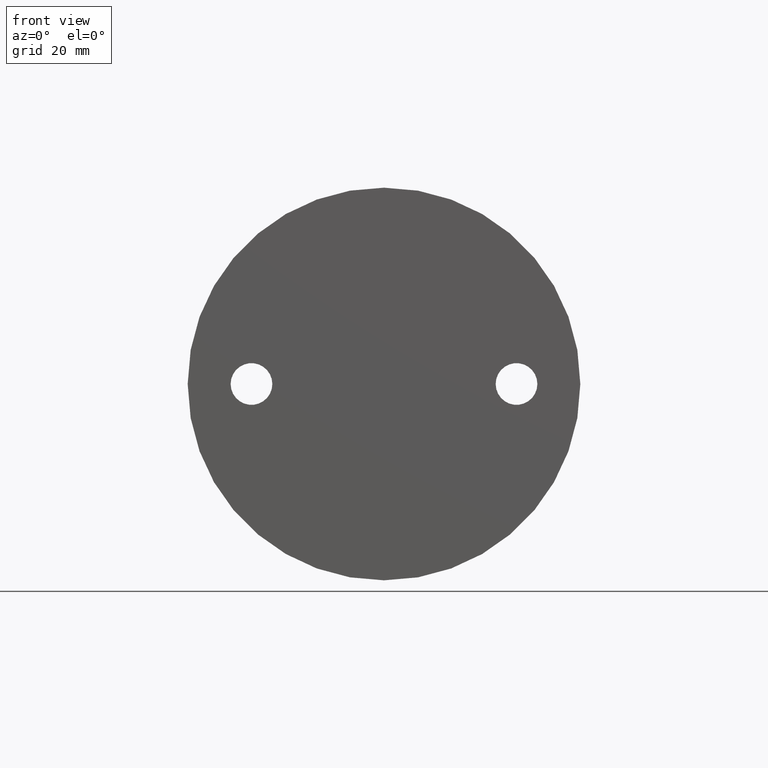
[diagram: clean part render]
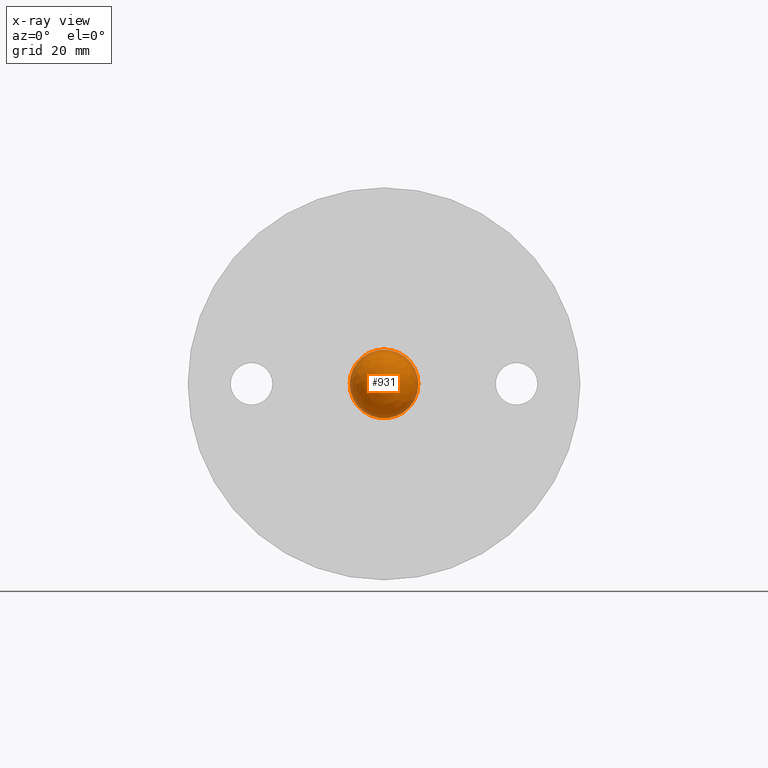
[diagram: x-ray — body ghosted, one internal face saturated and labeled with its STEP entity id]
A machine part, front view, then the same camera in x-ray: the body is ghosted and one INTERNAL B-rep face — a face not visible from any outside direction — is saturated and labeled: STEP entity #931.
In plain terms, the highlighted spherical surface has radius 7 mm.
Its self-contained STEP definition (entity closure, byte-faithful):
#136=SPHERICAL_SURFACE('',#1053,7.);
#139=FACE_OUTER_BOUND('',#194,.T.);
#194=EDGE_LOOP('',(#631,#632,#633,#634,#635));
#305=CIRCLE('',#1050,7.);
#306=CIRCLE('',#1051,7.);
#307=CIRCLE('',#1052,7.);
#308=CIRCLE('',#1054,7.);
#375=VERTEX_POINT('',#1465);
#376=VERTEX_POINT('',#1467);
#377=VERTEX_POINT('',#1469);
#378=VERTEX_POINT('',#1473);
#478=EDGE_CURVE('',#375,#376,#305,.T.);
#479=EDGE_CURVE('',#376,#377,#306,.T.);
#480=EDGE_CURVE('',#377,#375,#307,.T.);
#481=EDGE_CURVE('',#378,#377,#308,.T.);
#631=ORIENTED_EDGE('',*,*,#479,.F.);
#632=ORIENTED_EDGE('',*,*,#478,.F.);
#633=ORIENTED_EDGE('',*,*,#480,.F.);
#634=ORIENTED_EDGE('',*,*,#481,.F.);
#635=ORIENTED_EDGE('',*,*,#481,.T.);
#931=ADVANCED_FACE('',(#139),#136,.F.);
#1050=AXIS2_PLACEMENT_3D('',#1468,#1185,#1186);
#1051=AXIS2_PLACEMENT_3D('',#1470,#1187,#1188);
#1052=AXIS2_PLACEMENT_3D('',#1471,#1189,#1190);
#1053=AXIS2_PLACEMENT_3D('',#1472,#1191,#1192);
#1054=AXIS2_PLACEMENT_3D('',#1474,#1193,#1194);
#1185=DIRECTION('center_axis',(0.,-1.,0.));
#1186=DIRECTION('ref_axis',(1.,0.,0.));
#1187=DIRECTION('center_axis',(0.,-1.,0.));
#1188=DIRECTION('ref_axis',(1.,0.,0.));
#1189=DIRECTION('center_axis',(0.,-1.,0.));
#1190=DIRECTION('ref_axis',(1.,0.,0.));
#1191=DIRECTION('center_axis',(0.,1.,-6.12323399573677E-17));
#1192=DIRECTION('ref_axis',(0.,0.,-1.));
#1193=DIRECTION('center_axis',(-1.,0.,1.22464679914737E-16));
#1194=DIRECTION('ref_axis',(1.22464679914737E-16,0.,1.));
#1465=CARTESIAN_POINT('',(-7.,20.,-8.57252759403147E-16));
#1467=CARTESIAN_POINT('',(7.,20.,0.));
#1468=CARTESIAN_POINT('Origin',(0.,20.,0.));
#1469=CARTESIAN_POINT('',(2.32616309149905E-13,20.,7.));
#1470=CARTESIAN_POINT('Origin',(0.,20.,0.));
#1471=CARTESIAN_POINT('Origin',(0.,20.,0.));
#1472=CARTESIAN_POINT('Origin',(2.31759056390501E-13,19.9999999999998,0.));
#1473=CARTESIAN_POINT('',(2.31759056390501E-13,12.9999999999998,4.28626379701574E-16));
#1474=CARTESIAN_POINT('Origin',(2.31759056390501E-13,19.9999999999998,0.));